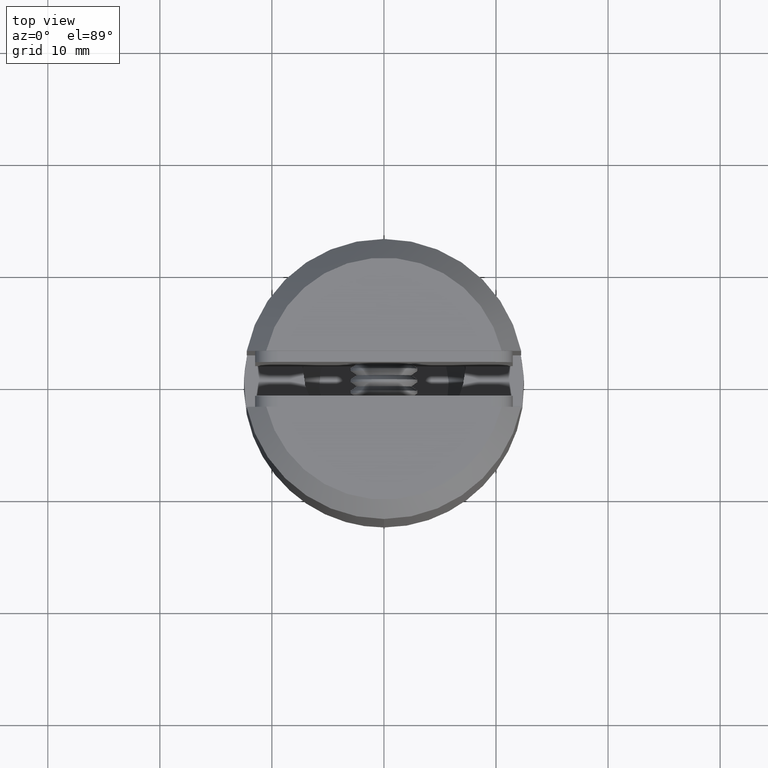
[diagram: clean part render]
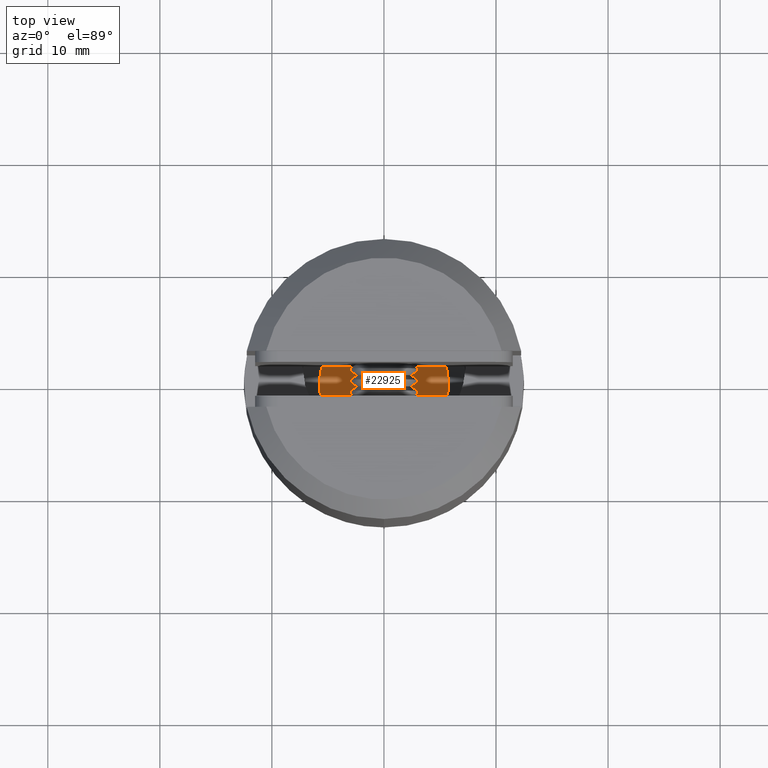
[diagram: same view with one face highlighted and labeled with its STEP entity id]
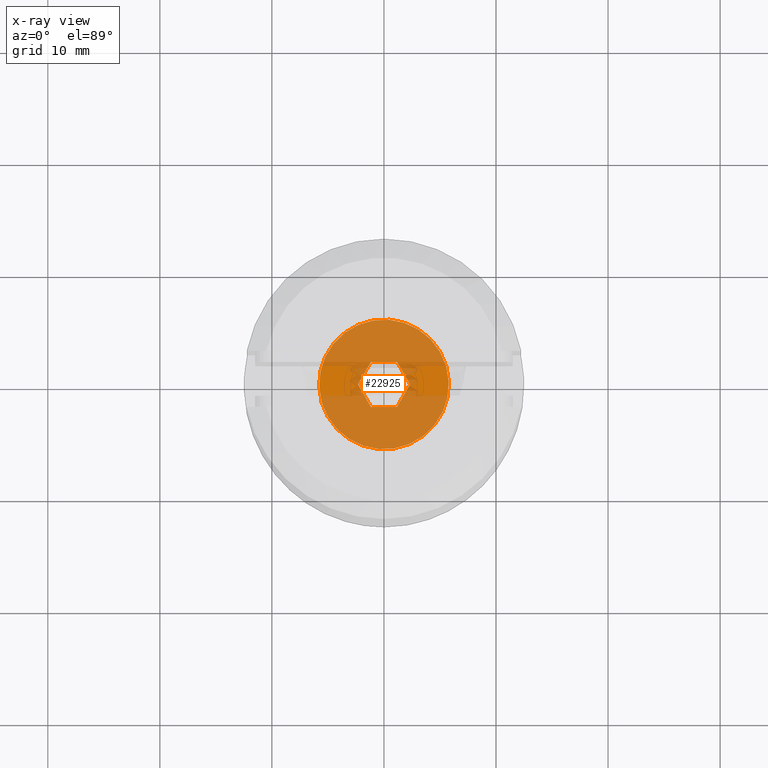
[diagram: x-ray of the same camera — body ghosted, the highlighted face saturated]
A machine part, top view. The second image highlights one B-rep face of the part: STEP entity #22925.
The next image is the same camera in x-ray: the body ghosted, the highlighted face saturated — about 83% of this face is hidden behind the body in this view.
In plain terms, the highlighted planar face has unit normal (-0, 0, 1).
Its self-contained STEP definition (entity closure, byte-faithful):
#66 = DIRECTION ( 'NONE',  ( 0.000000000000000000, 0.5000000000000003331, 0.8660254037844383745 ) ) ;
#773 = FACE_BOUND ( 'NONE', #5953, .T. ) ;
#1325 = ORIENTED_EDGE ( 'NONE', *, *, #3322, .T. ) ;
#1461 = LINE ( 'NONE', #6876, #17933 ) ;
#2170 = CARTESIAN_POINT ( 'NONE',  ( 0.000000000000000000, 1.160474041071148932, 2.009999999999999787 ) ) ;
#2761 = EDGE_CURVE ( 'NONE', #16799, #19692, #3730, .T. ) ;
#3247 = AXIS2_PLACEMENT_3D ( 'NONE', #5776, #16387, #5699 ) ;
#3322 = EDGE_CURVE ( 'NONE', #16162, #12093, #21099, .T. ) ;
#3730 = LINE ( 'NONE', #18020, #22152 ) ;
#4925 = FACE_OUTER_BOUND ( 'NONE', #22960, .T. ) ;
#5003 = LINE ( 'NONE', #15701, #15081 ) ;
#5213 = DIRECTION ( 'NONE',  ( 0.000000000000000000, 0.5000000000000001110, -0.8660254037844384856 ) ) ;
#5357 = ORIENTED_EDGE ( 'NONE', *, *, #20136, .T. ) ;
#5699 = DIRECTION ( 'NONE',  ( -0.000000000000000000, 0.000000000000000000, 1.000000000000000000 ) ) ;
#5776 = CARTESIAN_POINT ( 'NONE',  ( 0.000000000000000000, 0.000000000000000000, 0.000000000000000000 ) ) ;
#5953 = EDGE_LOOP ( 'NONE', ( #15282, #21827, #22728, #1325, #22377, #13849 ) ) ;
#6264 = VECTOR ( 'NONE', #66, 1000.000000000000227 ) ;
#6313 = DIRECTION ( 'NONE',  ( 0.000000000000000000, 0.000000000000000000, 1.000000000000000000 ) ) ;
#6571 = LINE ( 'NONE', #2170, #20273 ) ;
#6876 = CARTESIAN_POINT ( 'NONE',  ( 0.000000000000000000, 2.320948082142297419, -3.233603273357850147E-17 ) ) ;
#6897 = EDGE_CURVE ( 'NONE', #17051, #16799, #5003, .T. ) ;
#6964 = CARTESIAN_POINT ( 'NONE',  ( 0.000000000000000000, 1.160474041071148932, -2.009999999999999787 ) ) ;
#7170 = VECTOR ( 'NONE', #9978, 1000.000000000000000 ) ;
#8820 = CIRCLE ( 'NONE', #19499, 5.785000000000000142 ) ;
#8896 = DIRECTION ( 'NONE',  ( 0.000000000000000000, -1.000000000000000000, -1.868550495941740542E-16 ) ) ;
#9604 = EDGE_CURVE ( 'NONE', #22125, #17051, #6571, .T. ) ;
#9978 = DIRECTION ( 'NONE',  ( 0.000000000000000000, 1.000000000000000000, 0.000000000000000000 ) ) ;
#10078 = CARTESIAN_POINT ( 'NONE',  ( 0.000000000000000000, 0.000000000000000000, 0.000000000000000000 ) ) ;
#11227 = CARTESIAN_POINT ( 'NONE',  ( 0.000000000000000000, 0.000000000000000000, 5.785000000000000142 ) ) ;
#12093 = VERTEX_POINT ( 'NONE', #22949 ) ;
#12391 = DIRECTION ( 'NONE',  ( 0.000000000000000000, -0.5000000000000003331, 0.8660254037844383745 ) ) ;
#12997 = PLANE ( 'NONE',  #3247 ) ;
#13849 = ORIENTED_EDGE ( 'NONE', *, *, #9604, .T. ) ;
#15081 = VECTOR ( 'NONE', #19359, 1000.000000000000114 ) ;
#15282 = ORIENTED_EDGE ( 'NONE', *, *, #6897, .T. ) ;
#15378 = DIRECTION ( 'NONE',  ( -1.000000000000000000, -0.000000000000000000, -0.000000000000000000 ) ) ;
#15701 = CARTESIAN_POINT ( 'NONE',  ( 0.000000000000000000, -1.160474041071146267, 2.009999999999999343 ) ) ;
#16162 = VERTEX_POINT ( 'NONE', #21229 ) ;
#16387 = DIRECTION ( 'NONE',  ( -1.000000000000000000, 0.000000000000000000, -0.000000000000000000 ) ) ;
#16799 = VERTEX_POINT ( 'NONE', #20017 ) ;
#17051 = VERTEX_POINT ( 'NONE', #19447 ) ;
#17066 = CARTESIAN_POINT ( 'NONE',  ( -0.000000000000000000, -1.160474041071146267, -2.009999999999999787 ) ) ;
#17933 = VECTOR ( 'NONE', #12391, 1000.000000000000227 ) ;
#18020 = CARTESIAN_POINT ( 'NONE',  ( -0.000000000000000000, -2.320948082142294311, -7.831955557000869341E-18 ) ) ;
#19359 = DIRECTION ( 'NONE',  ( -0.000000000000000000, -0.5000000000000002220, -0.8660254037844384856 ) ) ;
#19447 = CARTESIAN_POINT ( 'NONE',  ( 0.000000000000000000, -1.160474041071146267, 2.009999999999999343 ) ) ;
#19499 = AXIS2_PLACEMENT_3D ( 'NONE', #10078, #15378, #6313 ) ;
#19692 = VERTEX_POINT ( 'NONE', #19890 ) ;
#19890 = CARTESIAN_POINT ( 'NONE',  ( -0.000000000000000000, -1.160474041071146267, -2.009999999999999787 ) ) ;
#20017 = CARTESIAN_POINT ( 'NONE',  ( 0.000000000000000000, -2.320948082142294311, 2.168404344971008868E-16 ) ) ;
#20136 = EDGE_CURVE ( 'NONE', #21685, #21685, #8820, .T. ) ;
#20273 = VECTOR ( 'NONE', #8896, 1000.000000000000000 ) ;
#20471 = CARTESIAN_POINT ( 'NONE',  ( 0.000000000000000000, 1.160474041071148932, 2.009999999999999787 ) ) ;
#20853 = EDGE_CURVE ( 'NONE', #12093, #22125, #1461, .T. ) ;
#21099 = LINE ( 'NONE', #6964, #6264 ) ;
#21229 = CARTESIAN_POINT ( 'NONE',  ( 0.000000000000000000, 1.160474041071148932, -2.009999999999999787 ) ) ;
#21425 = LINE ( 'NONE', #17066, #7170 ) ;
#21685 = VERTEX_POINT ( 'NONE', #11227 ) ;
#21827 = ORIENTED_EDGE ( 'NONE', *, *, #2761, .T. ) ;
#22125 = VERTEX_POINT ( 'NONE', #20471 ) ;
#22152 = VECTOR ( 'NONE', #5213, 1000.000000000000227 ) ;
#22377 = ORIENTED_EDGE ( 'NONE', *, *, #20853, .T. ) ;
#22728 = ORIENTED_EDGE ( 'NONE', *, *, #23081, .T. ) ;
#22925 = ADVANCED_FACE ( 'NONE', ( #4925, #773 ), #12997, .T. ) ;
#22949 = CARTESIAN_POINT ( 'NONE',  ( 0.000000000000000000, 2.320948082142297419, -3.233603273357850147E-17 ) ) ;
#22960 = EDGE_LOOP ( 'NONE', ( #5357 ) ) ;
#23081 = EDGE_CURVE ( 'NONE', #19692, #16162, #21425, .T. ) ;